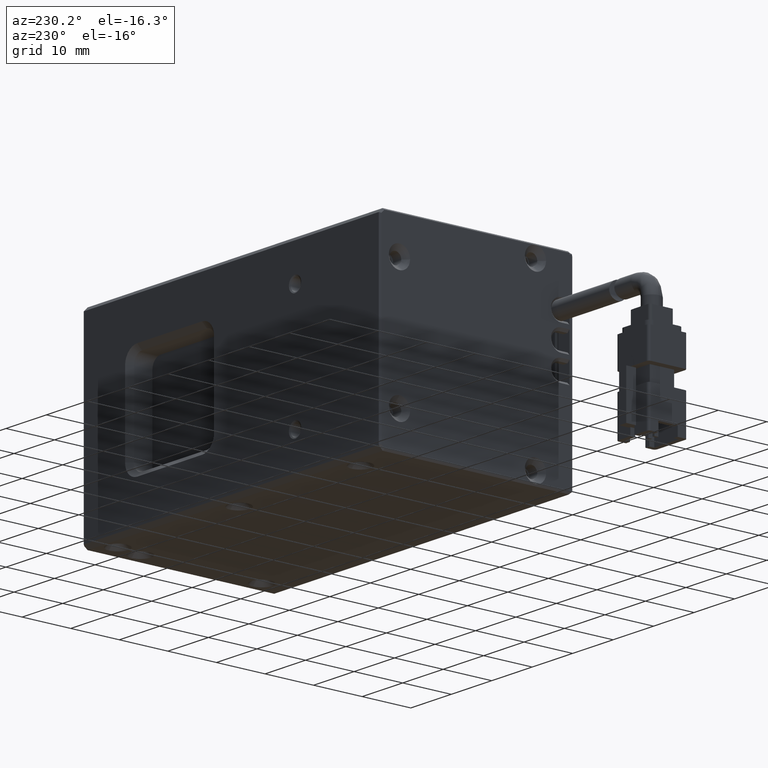
[diagram: clean part render]
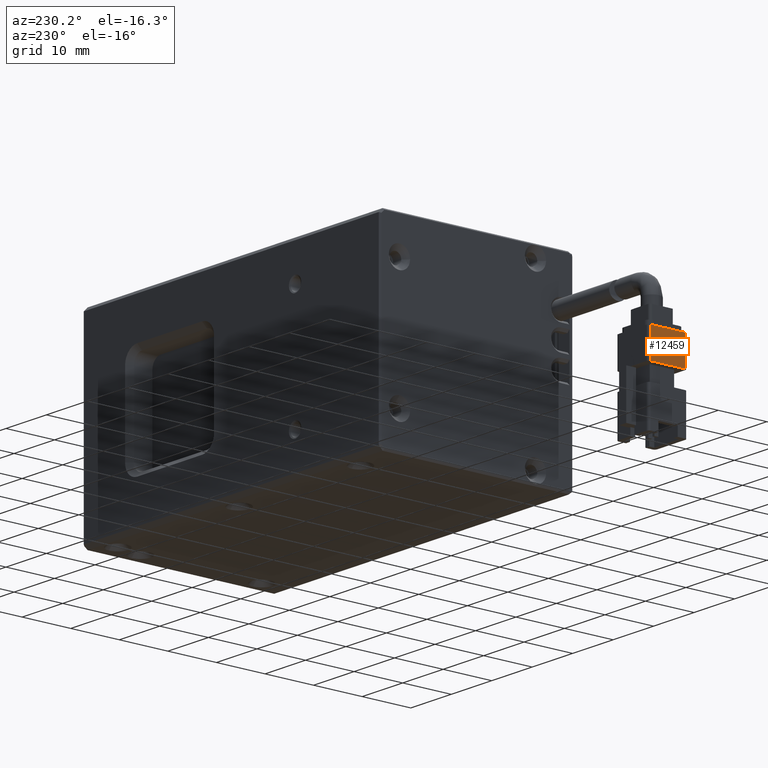
[diagram: same view with one face highlighted and labeled with its STEP entity id]
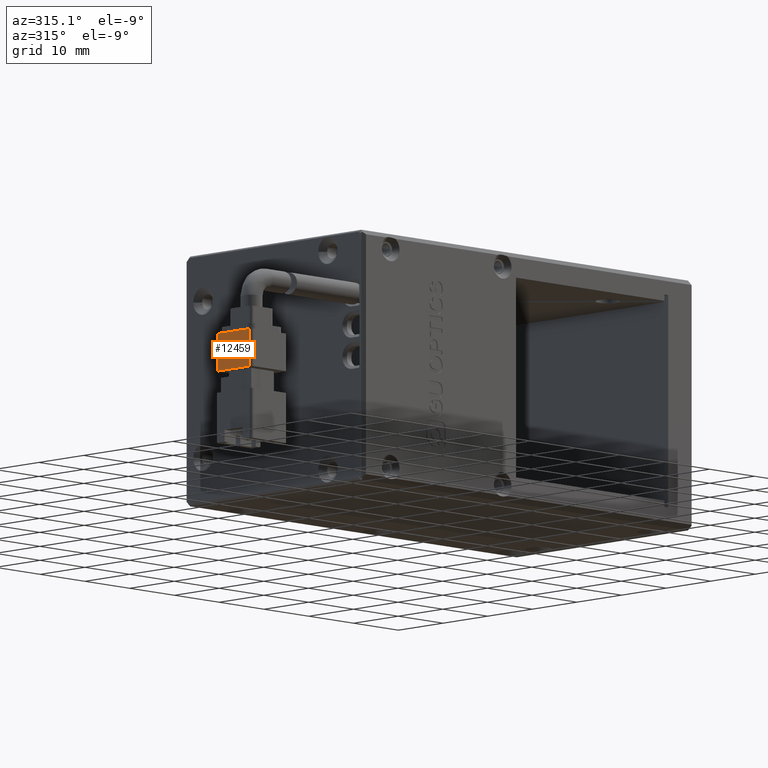
[diagram: same view with one face highlighted and labeled with its STEP entity id]
A machine part, auxiliary view. The second image highlights one B-rep face of the part: STEP entity #12459.
A second angle (auxiliary view) of the same face is appended — the face is thin or edge-on in the first view.
In plain terms, the highlighted planar face has unit normal (1, -0, 0).
Its self-contained STEP definition (entity closure, byte-faithful):
#648 = CARTESIAN_POINT ( 'NONE',  ( -70.63284929583376500, -0.6186139775399288600, 21.00000000000958900 ) ) ;
#874 = CARTESIAN_POINT ( 'NONE',  ( -70.63284929583376500, -0.6186139775399461800, 21.00000000000958900 ) ) ;
#919 = LINE ( 'NONE', #10340, #7210 ) ;
#1274 = PLANE ( 'NONE',  #16397 ) ;
#2122 = CARTESIAN_POINT ( 'NONE',  ( -70.63284929583376500, -7.618613977539945700, 15.00000000000956000 ) ) ;
#4693 = LINE ( 'NONE', #648, #10960 ) ;
#6168 = CARTESIAN_POINT ( 'NONE',  ( -70.63284929583376500, -0.6186139775399375200, 21.00000000000958900 ) ) ;
#7210 = VECTOR ( 'NONE', #34202, 1000.000000000000000 ) ;
#10006 = ORIENTED_EDGE ( 'NONE', *, *, #27058, .F. ) ;
#10340 = CARTESIAN_POINT ( 'NONE',  ( -70.63284929583376500, -7.618613977539945700, 21.00000000000958900 ) ) ;
#10438 = EDGE_LOOP ( 'NONE', ( #24883, #21000, #10006, #24907 ) ) ;
#10597 = FACE_OUTER_BOUND ( 'NONE', #10438, .T. ) ;
#10960 = VECTOR ( 'NONE', #21736, 1000.000000000000000 ) ;
#11209 = CARTESIAN_POINT ( 'NONE',  ( -70.63284929583376500, -7.618613977539945700, 21.00000000000954600 ) ) ;
#11656 = LINE ( 'NONE', #30481, #25707 ) ;
#11968 = CARTESIAN_POINT ( 'NONE',  ( -70.63284929583376500, -0.6186139775399461800, 21.00000000000958900 ) ) ;
#12459 = ADVANCED_FACE ( 'NONE', ( #10597 ), #1274, .F. ) ;
#14580 = DIRECTION ( 'NONE',  ( 1.665334536937736300E-016, 0.0000000000000000000, -1.000000000000000000 ) ) ;
#16341 = VERTEX_POINT ( 'NONE', #11209 ) ;
#16397 = AXIS2_PLACEMENT_3D ( 'NONE', #11968, #30511, #14580 ) ;
#18862 = VERTEX_POINT ( 'NONE', #27298 ) ;
#19934 = VECTOR ( 'NONE', #27312, 1000.000000000000000 ) ;
#21000 = ORIENTED_EDGE ( 'NONE', *, *, #33215, .F. ) ;
#21736 = DIRECTION ( 'NONE',  ( -1.665334536937736300E-016, -0.0000000000000000000, 1.000000000000000000 ) ) ;
#22426 = LINE ( 'NONE', #874, #19934 ) ;
#23573 = VERTEX_POINT ( 'NONE', #6168 ) ;
#23829 = VERTEX_POINT ( 'NONE', #2122 ) ;
#24883 = ORIENTED_EDGE ( 'NONE', *, *, #31721, .F. ) ;
#24907 = ORIENTED_EDGE ( 'NONE', *, *, #28304, .F. ) ;
#25707 = VECTOR ( 'NONE', #33178, 1000.000000000000000 ) ;
#27058 = EDGE_CURVE ( 'NONE', #18862, #23573, #4693, .T. ) ;
#27298 = CARTESIAN_POINT ( 'NONE',  ( -70.63284929583379300, -0.6186139775399379600, 15.00000000000957500 ) ) ;
#27312 = DIRECTION ( 'NONE',  ( -4.879110900817673100E-017, -1.000000000000000000, -8.125351892681061300E-033 ) ) ;
#28304 = EDGE_CURVE ( 'NONE', #23829, #18862, #11656, .T. ) ;
#30481 = CARTESIAN_POINT ( 'NONE',  ( -70.63284929583380700, -0.6186139775399461800, 15.00000000000960100 ) ) ;
#30511 = DIRECTION ( 'NONE',  ( 1.000000000000000000, -4.879110900817673100E-017, 1.665334536937736300E-016 ) ) ;
#31721 = EDGE_CURVE ( 'NONE', #16341, #23829, #919, .T. ) ;
#33178 = DIRECTION ( 'NONE',  ( 1.814986321941448300E-032, 1.000000000000000000, -1.089862896423739600E-016 ) ) ;
#33215 = EDGE_CURVE ( 'NONE', #23573, #16341, #22426, .T. ) ;
#34202 = DIRECTION ( 'NONE',  ( 1.665334536937736300E-016, 0.0000000000000000000, -1.000000000000000000 ) ) ;